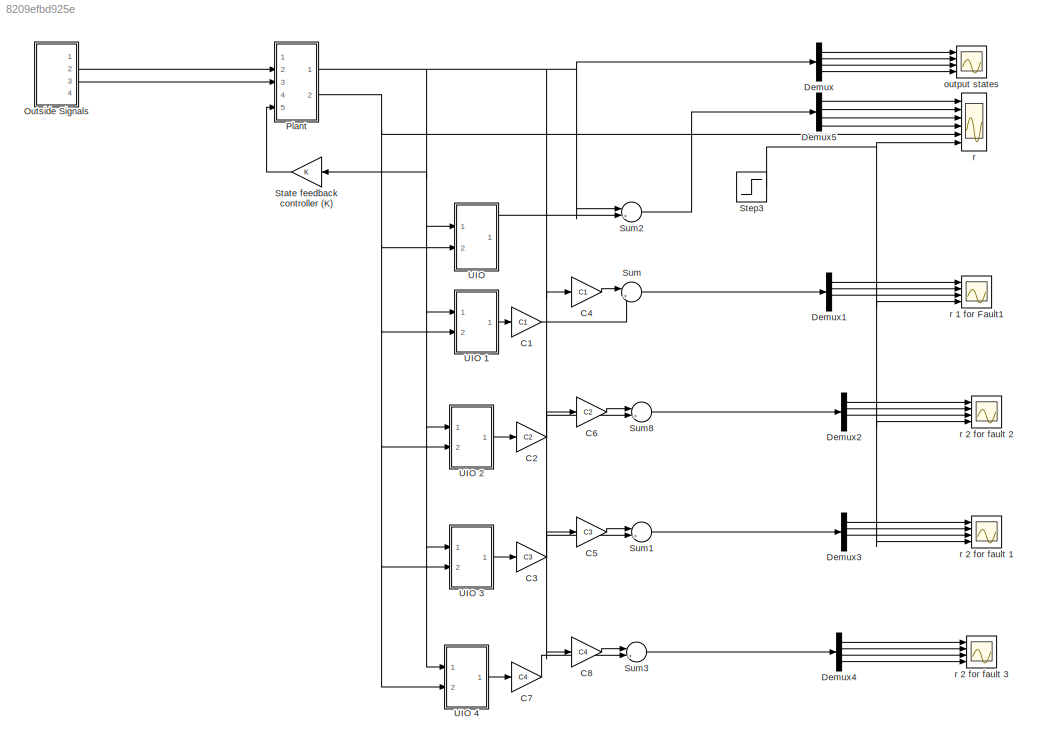
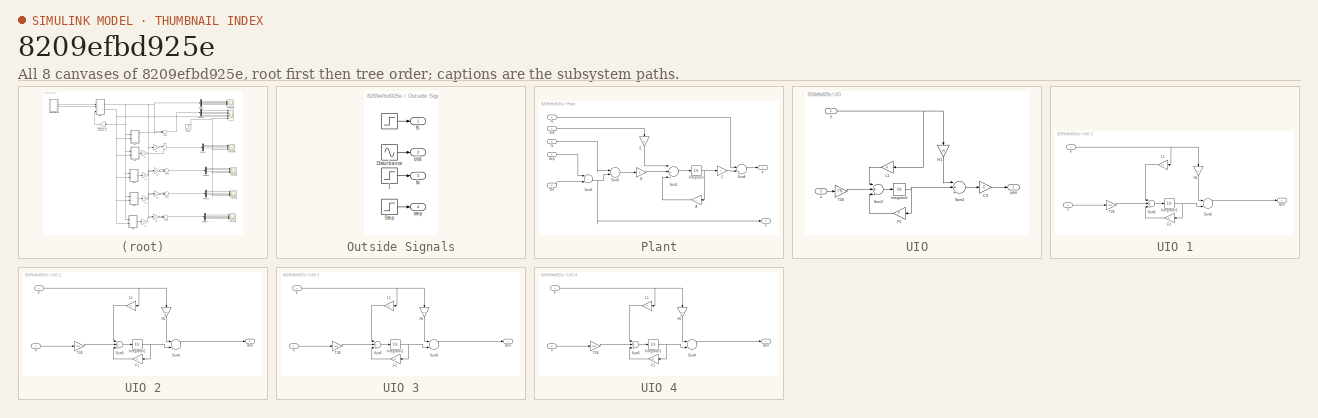
[diagram: thumbnail index - all 8 canvases of the model, root first then tree order]
MODEL slx_8209efbd925e
KIND model
BLOCK [Gain] C1
  Gain = C1
  Multiplication = Matrix(K*u)
  OutDataTypeStr = Inherit: Inherit via internal rule
  ParamDataTypeStr = Inherit: Inherit via internal rule
  SaturateOnIntegerOverflow = off
BLOCK [Gain] C2
  Gain = C2
  Multiplication = Matrix(K*u)
  OutDataTypeStr = Inherit: Inherit via internal rule
  ParamDataTypeStr = Inherit: Inherit via internal rule
  SaturateOnIntegerOverflow = off
BLOCK [Gain] C3
  Gain = C3
  Multiplication = Matrix(K*u)
  OutDataTypeStr = Inherit: Inherit via internal rule
  ParamDataTypeStr = Inherit: Inherit via internal rule
  SaturateOnIntegerOverflow = off
BLOCK [Gain] C4
  Gain = C1
  Multiplication = Matrix(K*u)
  OutDataTypeStr = Inherit: Inherit via internal rule
  ParamDataTypeStr = Inherit: Inherit via internal rule
  SaturateOnIntegerOverflow = off
BLOCK [Gain] C5
  Gain = C3
  Multiplication = Matrix(K*u)
  OutDataTypeStr = Inherit: Inherit via internal rule
  ParamDataTypeStr = Inherit: Inherit via internal rule
  SaturateOnIntegerOverflow = off
BLOCK [Gain] C6
  Gain = C2
  Multiplication = Matrix(K*u)
  OutDataTypeStr = Inherit: Inherit via internal rule
  ParamDataTypeStr = Inherit: Inherit via internal rule
  SaturateOnIntegerOverflow = off
BLOCK [Gain] C7
  Gain = C4
  Multiplication = Matrix(K*u)
  OutDataTypeStr = Inherit: Inherit via internal rule
  ParamDataTypeStr = Inherit: Inherit via internal rule
  SaturateOnIntegerOverflow = off
BLOCK [Gain] C8
  Gain = C4
  Multiplication = Matrix(K*u)
  OutDataTypeStr = Inherit: Inherit via internal rule
  ParamDataTypeStr = Inherit: Inherit via internal rule
  SaturateOnIntegerOverflow = off
BLOCK [Demux] Demux
  DisplayOption = bar
  Ports = [1, 4]
BLOCK [Demux] Demux1
  DisplayOption = bar
  Ports = [1, 4]
BLOCK [Demux] Demux2
  DisplayOption = bar
  Ports = [1, 4]
BLOCK [Demux] Demux3
  DisplayOption = bar
  Ports = [1, 4]
BLOCK [Demux] Demux4
  DisplayOption = bar
  Ports = [1, 4]
BLOCK [Demux] Demux5
  DisplayOption = bar
  Ports = [1, 4]
BLOCK [SubSystem] Outside Signals
  Ports = [0, 4]
  RequestExecContextInheritance = off
BLOCK [Step] Outside Signals/  
  SampleTime = 0
  Time = 7
BLOCK [Step] Outside Signals/  1
  SampleTime = 0
  Time = 7
BLOCK [Sin] Outside Signals/Disturbance
  Frequency = 100
  Ports = [0, 1]
  SampleTime = 0
BLOCK [Step] Outside Signals/Step
  SampleTime = 0
  Time = 0
BLOCK [Outport] Outside Signals/dist
  IconDisplay = Port number
  Port = 2
BLOCK [Outport] Outside Signals/fa
  IconDisplay = Port number
  Port = 3
BLOCK [Outport] Outside Signals/fs
  IconDisplay = Port number
BLOCK [Outport] Outside Signals/step 
  IconDisplay = Port number
  Port = 4
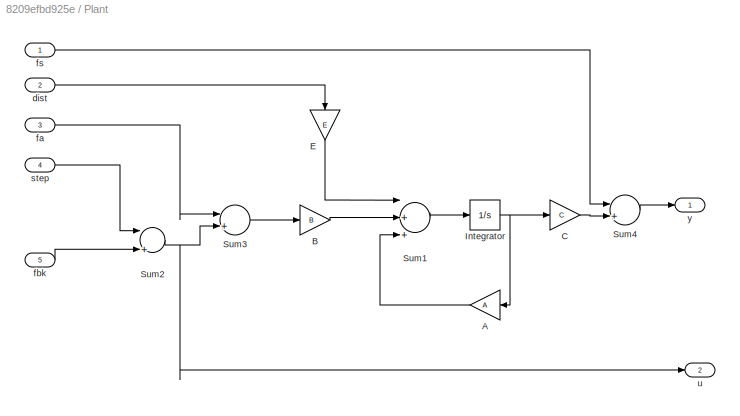
BLOCK [SubSystem] Plant
  Ports = [5, 2]
  RequestExecContextInheritance = off
BLOCK [Gain] Plant/A
  Gain = A
  Multiplication = Matrix(K*u)
  OutDataTypeStr = Inherit: Inherit via internal rule
  ParamDataTypeStr = Inherit: Inherit via internal rule
  SaturateOnIntegerOverflow = off
BLOCK [Gain] Plant/B
  Gain = B
  Multiplication = Matrix(K*u)
  OutDataTypeStr = Inherit: Inherit via internal rule
  ParamDataTypeStr = Inherit: Inherit via internal rule
  SaturateOnIntegerOverflow = off
BLOCK [Gain] Plant/C
  Gain = C
  Multiplication = Matrix(K*u)
  OutDataTypeStr = Inherit: Inherit via internal rule
  ParamDataTypeStr = Inherit: Inherit via internal rule
  SaturateOnIntegerOverflow = off
BLOCK [Gain] Plant/E
  Gain = E
  Multiplication = Matrix(K*u)
  OutDataTypeStr = Inherit: Inherit via internal rule
  ParamDataTypeStr = Inherit: Inherit via internal rule
  SaturateOnIntegerOverflow = off
BLOCK [Integrator] Plant/Integrator
  InitialCondition = [.01;0;.011;.011]
  Ports = [1, 1]
BLOCK [Sum] Plant/Sum1
  InputSameDT = off
  Inputs = |+++
  OutDataTypeStr = Inherit: Inherit via internal rule
  Ports = [3, 1]
  SaturateOnIntegerOverflow = off
BLOCK [Sum] Plant/Sum2
  InputSameDT = off
  Inputs = |+-
  OutDataTypeStr = Inherit: Inherit via internal rule
  Ports = [2, 1]
  SaturateOnIntegerOverflow = off
BLOCK [Sum] Plant/Sum3
  InputSameDT = off
  Inputs = |++
  OutDataTypeStr = Inherit: Inherit via internal rule
  Ports = [2, 1]
  SaturateOnIntegerOverflow = off
BLOCK [Sum] Plant/Sum4
  InputSameDT = off
  Inputs = |++
  OutDataTypeStr = Inherit: Inherit via internal rule
  Ports = [2, 1]
  SaturateOnIntegerOverflow = off
BLOCK [Inport] Plant/dist
  IconDisplay = Port number
  Port = 2
BLOCK [Inport] Plant/fa
  IconDisplay = Port number
  Port = 3
BLOCK [Inport] Plant/fbk
  IconDisplay = Port number
  Port = 5
BLOCK [Inport] Plant/fs
  IconDisplay = Port number
BLOCK [Inport] Plant/step
  IconDisplay = Port number
  Port = 4
BLOCK [Outport] Plant/u
  IconDisplay = Port number
  Port = 2
BLOCK [Outport] Plant/y
  IconDisplay = Port number
BLOCK [Gain] State feedback controller (K)
  Gain = K
  Multiplication = Matrix(K*u)
  OutDataTypeStr = Inherit: Inherit via internal rule
  ParamDataTypeStr = Inherit: Inherit via internal rule
  SaturateOnIntegerOverflow = off
BLOCK [Step] Step3
  SampleTime = 0
  Time = 7
BLOCK [Sum] Sum
  IconShape = round
  InputSameDT = off
  Inputs = |+-
  OutDataTypeStr = Inherit: Inherit via internal rule
  Ports = [2, 1]
  SaturateOnIntegerOverflow = off
BLOCK [Sum] Sum1
  IconShape = round
  InputSameDT = off
  Inputs = |+-
  OutDataTypeStr = Inherit: Inherit via internal rule
  Ports = [2, 1]
  SaturateOnIntegerOverflow = off
BLOCK [Sum] Sum2
  IconShape = round
  InputSameDT = off
  Inputs = |+-
  OutDataTypeStr = Inherit: Inherit via internal rule
  Ports = [2, 1]
  SaturateOnIntegerOverflow = off
BLOCK [Sum] Sum3
  IconShape = round
  InputSameDT = off
  Inputs = |+-
  OutDataTypeStr = Inherit: Inherit via internal rule
  Ports = [2, 1]
  SaturateOnIntegerOverflow = off
BLOCK [Sum] Sum8
  IconShape = round
  InputSameDT = off
  Inputs = |+-
  OutDataTypeStr = Inherit: Inherit via internal rule
  Ports = [2, 1]
  SaturateOnIntegerOverflow = off
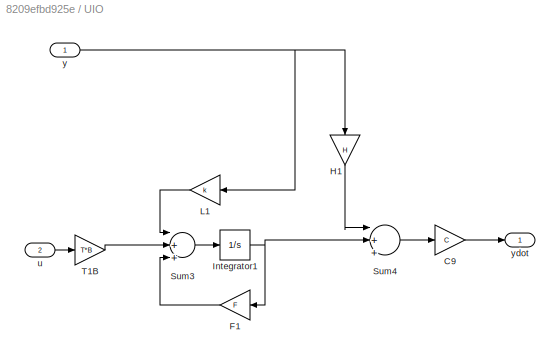
BLOCK [SubSystem] UIO
  Ports = [2, 1]
  RequestExecContextInheritance = off
BLOCK [SubSystem] UIO 1
  Ports = [2, 1]
  RequestExecContextInheritance = off
BLOCK [Gain] UIO 1/F1
  Gain = F1
  Multiplication = Matrix(K*u)
  OutDataTypeStr = Inherit: Inherit via internal rule
  ParamDataTypeStr = Inherit: Inherit via internal rule
  SaturateOnIntegerOverflow = off
BLOCK [Gain] UIO 1/H1
  Gain = H1
  Multiplication = Matrix(K*u)
  OutDataTypeStr = Inherit: Inherit via internal rule
  ParamDataTypeStr = Inherit: Inherit via internal rule
  SaturateOnIntegerOverflow = off
BLOCK [Integrator] UIO 1/Integrator1
  Ports = [1, 1]
BLOCK [Gain] UIO 1/L1
  Gain = K1
  Multiplication = Matrix(K*u)
  OutDataTypeStr = Inherit: Inherit via internal rule
  ParamDataTypeStr = Inherit: Inherit via internal rule
  SaturateOnIntegerOverflow = off
BLOCK [Sum] UIO 1/Sum3
  InputSameDT = off
  Inputs = |+++
  OutDataTypeStr = Inherit: Inherit via internal rule
  Ports = [3, 1]
  SaturateOnIntegerOverflow = off
BLOCK [Sum] UIO 1/Sum4
  InputSameDT = off
  Inputs = |++
  OutDataTypeStr = Inherit: Inherit via internal rule
  Ports = [2, 1]
  SaturateOnIntegerOverflow = off
BLOCK [Gain] UIO 1/T1B
  Gain = T1*B
  Multiplication = Matrix(K*u)
  OutDataTypeStr = Inherit: Inherit via internal rule
  ParamDataTypeStr = Inherit: Inherit via internal rule
  SaturateOnIntegerOverflow = off
BLOCK [Inport] UIO 1/u
  IconDisplay = Port number
  Port = 2
BLOCK [Outport] UIO 1/xdot
  IconDisplay = Port number
BLOCK [Inport] UIO 1/y
  IconDisplay = Port number
BLOCK [SubSystem] UIO 2
  Ports = [2, 1]
  RequestExecContextInheritance = off
BLOCK [Gain] UIO 2/F1
  Gain = F
  Multiplication = Matrix(K*u)
  OutDataTypeStr = Inherit: Inherit via internal rule
  ParamDataTypeStr = Inherit: Inherit via internal rule
  SaturateOnIntegerOverflow = off
BLOCK [Gain] UIO 2/H1
  Gain = H2
  Multiplication = Matrix(K*u)
  OutDataTypeStr = Inherit: Inherit via internal rule
  ParamDataTypeStr = Inherit: Inherit via internal rule
  SaturateOnIntegerOverflow = off
BLOCK [Integrator] UIO 2/Integrator1
  Ports = [1, 1]
BLOCK [Gain] UIO 2/L1
  Gain = K2
  Multiplication = Matrix(K*u)
  OutDataTypeStr = Inherit: Inherit via internal rule
  ParamDataTypeStr = Inherit: Inherit via internal rule
  SaturateOnIntegerOverflow = off
BLOCK [Sum] UIO 2/Sum3
  InputSameDT = off
  Inputs = |+++
  OutDataTypeStr = Inherit: Inherit via internal rule
  Ports = [3, 1]
  SaturateOnIntegerOverflow = off
BLOCK [Sum] UIO 2/Sum4
  InputSameDT = off
  Inputs = |++
  OutDataTypeStr = Inherit: Inherit via internal rule
  Ports = [2, 1]
  SaturateOnIntegerOverflow = off
BLOCK [Gain] UIO 2/T1B
  Gain = T2*B
  Multiplication = Matrix(K*u)
  OutDataTypeStr = Inherit: Inherit via internal rule
  ParamDataTypeStr = Inherit: Inherit via internal rule
  SaturateOnIntegerOverflow = off
BLOCK [Inport] UIO 2/u
  IconDisplay = Port number
  Port = 2
BLOCK [Outport] UIO 2/xdot
  IconDisplay = Port number
BLOCK [Inport] UIO 2/y
  IconDisplay = Port number
BLOCK [SubSystem] UIO 3
  Ports = [2, 1]
  RequestExecContextInheritance = off
BLOCK [Gain] UIO 3/F1
  Gain = F1
  Multiplication = Matrix(K*u)
  OutDataTypeStr = Inherit: Inherit via internal rule
  ParamDataTypeStr = Inherit: Inherit via internal rule
  SaturateOnIntegerOverflow = off
BLOCK [Gain] UIO 3/H1
  Gain = H3
  Multiplication = Matrix(K*u)
  OutDataTypeStr = Inherit: Inherit via internal rule
  ParamDataTypeStr = Inherit: Inherit via internal rule
  SaturateOnIntegerOverflow = off
BLOCK [Integrator] UIO 3/Integrator1
  Ports = [1, 1]
BLOCK [Gain] UIO 3/L1
  Gain = K3
  Multiplication = Matrix(K*u)
  OutDataTypeStr = Inherit: Inherit via internal rule
  ParamDataTypeStr = Inherit: Inherit via internal rule
  SaturateOnIntegerOverflow = off
BLOCK [Sum] UIO 3/Sum3
  InputSameDT = off
  Inputs = |+++
  OutDataTypeStr = Inherit: Inherit via internal rule
  Ports = [3, 1]
  SaturateOnIntegerOverflow = off
BLOCK [Sum] UIO 3/Sum4
  InputSameDT = off
  Inputs = |++
  OutDataTypeStr = Inherit: Inherit via internal rule
  Ports = [2, 1]
  SaturateOnIntegerOverflow = off
BLOCK [Gain] UIO 3/T1B
  Gain = T3*B
  Multiplication = Matrix(K*u)
  OutDataTypeStr = Inherit: Inherit via internal rule
  ParamDataTypeStr = Inherit: Inherit via internal rule
  SaturateOnIntegerOverflow = off
BLOCK [Inport] UIO 3/u
  IconDisplay = Port number
  Port = 2
BLOCK [Outport] UIO 3/xdot
  IconDisplay = Port number
BLOCK [Inport] UIO 3/y
  IconDisplay = Port number
BLOCK [SubSystem] UIO 4
  Ports = [2, 1]
  RequestExecContextInheritance = off
BLOCK [Gain] UIO 4/F1
  Gain = F4
  Multiplication = Matrix(K*u)
  OutDataTypeStr = Inherit: Inherit via internal rule
  ParamDataTypeStr = Inherit: Inherit via internal rule
  SaturateOnIntegerOverflow = off
BLOCK [Gain] UIO 4/H1
  Gain = H4
  Multiplication = Matrix(K*u)
  OutDataTypeStr = Inherit: Inherit via internal rule
  ParamDataTypeStr = Inherit: Inherit via internal rule
  SaturateOnIntegerOverflow = off
BLOCK [Integrator] UIO 4/Integrator1
  Ports = [1, 1]
BLOCK [Gain] UIO 4/L1
  Gain = K4
  Multiplication = Matrix(K*u)
  OutDataTypeStr = Inherit: Inherit via internal rule
  ParamDataTypeStr = Inherit: Inherit via internal rule
  SaturateOnIntegerOverflow = off
BLOCK [Sum] UIO 4/Sum3
  InputSameDT = off
  Inputs = |+++
  OutDataTypeStr = Inherit: Inherit via internal rule
  Ports = [3, 1]
  SaturateOnIntegerOverflow = off
BLOCK [Sum] UIO 4/Sum4
  InputSameDT = off
  Inputs = |++
  OutDataTypeStr = Inherit: Inherit via internal rule
  Ports = [2, 1]
  SaturateOnIntegerOverflow = off
BLOCK [Gain] UIO 4/T1B
  Gain = T4*B
  Multiplication = Matrix(K*u)
  OutDataTypeStr = Inherit: Inherit via internal rule
  ParamDataTypeStr = Inherit: Inherit via internal rule
  SaturateOnIntegerOverflow = off
BLOCK [Inport] UIO 4/u
  IconDisplay = Port number
  Port = 2
BLOCK [Outport] UIO 4/xdot
  IconDisplay = Port number
BLOCK [Inport] UIO 4/y
  IconDisplay = Port number
BLOCK [Gain] UIO/C9
  Gain = C
  Multiplication = Matrix(K*u)
  OutDataTypeStr = Inherit: Inherit via internal rule
  ParamDataTypeStr = Inherit: Inherit via internal rule
  SaturateOnIntegerOverflow = off
BLOCK [Gain] UIO/F1
  Gain = F
  Multiplication = Matrix(K*u)
  OutDataTypeStr = Inherit: Inherit via internal rule
  ParamDataTypeStr = Inherit: Inherit via internal rule
  SaturateOnIntegerOverflow = off
BLOCK [Gain] UIO/H1
  Gain = H
  Multiplication = Matrix(K*u)
  OutDataTypeStr = Inherit: Inherit via internal rule
  ParamDataTypeStr = Inherit: Inherit via internal rule
  SaturateOnIntegerOverflow = off
BLOCK [Integrator] UIO/Integrator1
  Ports = [1, 1]
BLOCK [Gain] UIO/L1
  Gain = k
  Multiplication = Matrix(K*u)
  OutDataTypeStr = Inherit: Inherit via internal rule
  ParamDataTypeStr = Inherit: Inherit via internal rule
  SaturateOnIntegerOverflow = off
BLOCK [Sum] UIO/Sum3
  InputSameDT = off
  Inputs = |+++
  OutDataTypeStr = Inherit: Inherit via internal rule
  Ports = [3, 1]
  SaturateOnIntegerOverflow = off
BLOCK [Sum] UIO/Sum4
  InputSameDT = off
  Inputs = |+++
  OutDataTypeStr = Inherit: Inherit via internal rule
  Ports = [3, 1]
  SaturateOnIntegerOverflow = off
BLOCK [Gain] UIO/T1B
  Gain = T*B
  Multiplication = Matrix(K*u)
  OutDataTypeStr = Inherit: Inherit via internal rule
  ParamDataTypeStr = Inherit: Inherit via internal rule
  SaturateOnIntegerOverflow = off
BLOCK [Inport] UIO/u
  IconDisplay = Port number
  Port = 2
BLOCK [Inport] UIO/y
  IconDisplay = Port number
BLOCK [Outport] UIO/ydot
  IconDisplay = Port number
BLOCK [Scope] output states
  DataFormat = StructureWithTime
  Floating = off
  NumInputPorts = 4
  Ports = [4]
  SampleTime = 0
  ShowLegends = off
  TimeRange = 10
  YMax = 5~5~5~5
  YMin = -5~-5~-5~-5
BLOCK [Scope] r
  DataFormat = StructureWithTime
  Floating = off
  NumInputPorts = 6
  Ports = [6]
  SampleTime = 0
  SaveName = ScopeData5
  ShowLegends = off
  YMax = 5~5~5~5~5~5
  YMin = -5~-5~-5~-5~-5~-5
BLOCK [Scope] r 1 for Fault1
  DataFormat = StructureWithTime
  Floating = off
  NumInputPorts = 4
  Ports = [4]
  SampleTime = 0
  SaveName = ScopeData1
  ShowLegends = off
  YMax = 1e-020~5~5~5
  YMin = -1e-020~-5~-5~-5
BLOCK [Scope] r 2 for fault 1
  DataFormat = StructureWithTime
  Floating = off
  NumInputPorts = 4
  Ports = [4]
  SampleTime = 0
  SaveName = ScopeData3
  ShowLegends = off
  YMax = 5~5~5~5
  YMin = -5~-5~-5~-5
BLOCK [Scope] r 2 for fault 2
  DataFormat = StructureWithTime
  Floating = off
  NumInputPorts = 4
  Ports = [4]
  SampleTime = 0
  SaveName = ScopeData2
  ShowLegends = off
  YMax = 5~5~5~5
  YMin = -5~-5~-5~-5
BLOCK [Scope] r 2 for fault 3
  DataFormat = StructureWithTime
  Floating = off
  NumInputPorts = 4
  Ports = [4]
  SampleTime = 0
  SaveName = ScopeData4
  ShowLegends = off
  YMax = 5~5~5~5
  YMin = -5~-5~-5~-5
LINE C1:1 -> Sum:2
LINE C2:1 -> Sum8:2
LINE C3:1 -> Sum1:2
LINE C4:1 -> Sum:1
LINE C5:1 -> Sum1:1
LINE C6:1 -> Sum8:1
LINE C7:1 -> Sum3:2
LINE C8:1 -> Sum3:1
LINE Demux1:1 -> r 1 for Fault1:1
LINE Demux1:2 -> r 1 for Fault1:2
LINE Demux1:3 -> r 1 for Fault1:3
LINE Demux2:1 -> r 2 for fault 2:1
LINE Demux2:2 -> r 2 for fault 2:2
LINE Demux2:3 -> r 2 for fault 2:3
LINE Demux3:1 -> r 2 for fault 1:1
LINE Demux3:2 -> r 2 for fault 1:2
LINE Demux3:3 -> r 2 for fault 1:3
LINE Demux4:1 -> r 2 for fault 3:1
LINE Demux4:2 -> r 2 for fault 3:2
LINE Demux4:3 -> r 2 for fault 3:3
LINE Demux4:4 -> r 2 for fault 3:4
LINE Demux5:1 -> r:1
LINE Demux5:2 -> r:2
LINE Demux5:3 -> r:3
LINE Demux5:4 -> r:4
LINE Demux:1 -> output states:1
LINE Demux:2 -> output states:2
LINE Demux:3 -> output states:3
LINE Demux:4 -> output states:4
LINE Outside Signals/  1:1 -> Outside Signals/fa:1
LINE Outside Signals/  :1 -> Outside Signals/fs:1
LINE Outside Signals/Disturbance:1 -> Outside Signals/dist:1
LINE Outside Signals/Step:1 -> Outside Signals/step :1
LINE Outside Signals:2 -> Plant:2
LINE Outside Signals:3 -> Plant:3
LINE Plant/A:1 -> Plant/Sum1:3
LINE Plant/B:1 -> Plant/Sum1:2
LINE Plant/C:1 -> Plant/Sum4:2
LINE Plant/E:1 -> Plant/Sum1:1
NET Plant/Integrator:1 -> Plant/A:1, Plant/C:1
LINE Plant/Sum1:1 -> Plant/Integrator:1
NET Plant/Sum2:1 -> Plant/Sum3:2, Plant/u:1
LINE Plant/Sum3:1 -> Plant/B:1
LINE Plant/Sum4:1 -> Plant/y:1
LINE Plant/dist:1 -> Plant/E:1
LINE Plant/fa:1 -> Plant/Sum3:1
LINE Plant/fbk:1 -> Plant/Sum2:2
LINE Plant/fs:1 -> Plant/Sum4:1
LINE Plant/step:1 -> Plant/Sum2:1
NET Plant:1 -> C4:1, C5:1, C6:1, C8:1, Demux:1, State feedback controller (K):1, Sum2:1, UIO 1:1, UIO 2:1, UIO 3:1, UIO 4:1, UIO:1
NET Plant:2 -> UIO 1:2, UIO 2:2, UIO 3:2, UIO 4:2, UIO:2, r:5
LINE State feedback controller (K):1 -> Plant:5
NET Step3:1 -> r 1 for Fault1:4, r 2 for fault 1:4, r 2 for fault 2:4, r:6
LINE Sum1:1 -> Demux3:1
LINE Sum2:1 -> Demux5:1
LINE Sum3:1 -> Demux4:1
LINE Sum8:1 -> Demux2:1
LINE Sum:1 -> Demux1:1
LINE UIO 1/F1:1 -> UIO 1/Sum3:3
LINE UIO 1/H1:1 -> UIO 1/Sum4:1
NET UIO 1/Integrator1:1 -> UIO 1/F1:1, UIO 1/Sum4:2
LINE UIO 1/L1:1 -> UIO 1/Sum3:1
LINE UIO 1/Sum3:1 -> UIO 1/Integrator1:1
LINE UIO 1/Sum4:1 -> UIO 1/xdot:1
LINE UIO 1/T1B:1 -> UIO 1/Sum3:2
LINE UIO 1/u:1 -> UIO 1/T1B:1
NET UIO 1/y:1 -> UIO 1/H1:1, UIO 1/L1:1
LINE UIO 1:1 -> C1:1
LINE UIO 2/F1:1 -> UIO 2/Sum3:3
LINE UIO 2/H1:1 -> UIO 2/Sum4:1
NET UIO 2/Integrator1:1 -> UIO 2/F1:1, UIO 2/Sum4:2
LINE UIO 2/L1:1 -> UIO 2/Sum3:1
LINE UIO 2/Sum3:1 -> UIO 2/Integrator1:1
LINE UIO 2/Sum4:1 -> UIO 2/xdot:1
LINE UIO 2/T1B:1 -> UIO 2/Sum3:2
LINE UIO 2/u:1 -> UIO 2/T1B:1
NET UIO 2/y:1 -> UIO 2/H1:1, UIO 2/L1:1
LINE UIO 2:1 -> C2:1
LINE UIO 3/F1:1 -> UIO 3/Sum3:3
LINE UIO 3/H1:1 -> UIO 3/Sum4:1
NET UIO 3/Integrator1:1 -> UIO 3/F1:1, UIO 3/Sum4:2
LINE UIO 3/L1:1 -> UIO 3/Sum3:1
LINE UIO 3/Sum3:1 -> UIO 3/Integrator1:1
LINE UIO 3/Sum4:1 -> UIO 3/xdot:1
LINE UIO 3/T1B:1 -> UIO 3/Sum3:2
LINE UIO 3/u:1 -> UIO 3/T1B:1
NET UIO 3/y:1 -> UIO 3/H1:1, UIO 3/L1:1
LINE UIO 3:1 -> C3:1
LINE UIO 4/F1:1 -> UIO 4/Sum3:3
LINE UIO 4/H1:1 -> UIO 4/Sum4:1
NET UIO 4/Integrator1:1 -> UIO 4/F1:1, UIO 4/Sum4:2
LINE UIO 4/L1:1 -> UIO 4/Sum3:1
LINE UIO 4/Sum3:1 -> UIO 4/Integrator1:1
LINE UIO 4/Sum4:1 -> UIO 4/xdot:1
LINE UIO 4/T1B:1 -> UIO 4/Sum3:2
LINE UIO 4/u:1 -> UIO 4/T1B:1
NET UIO 4/y:1 -> UIO 4/H1:1, UIO 4/L1:1
LINE UIO 4:1 -> C7:1
LINE UIO/C9:1 -> UIO/ydot:1
LINE UIO/F1:1 -> UIO/Sum3:3
LINE UIO/H1:1 -> UIO/Sum4:1
NET UIO/Integrator1:1 -> UIO/F1:1, UIO/Sum4:2
LINE UIO/L1:1 -> UIO/Sum3:1
LINE UIO/Sum3:1 -> UIO/Integrator1:1
LINE UIO/Sum4:1 -> UIO/C9:1
LINE UIO/T1B:1 -> UIO/Sum3:2
LINE UIO/u:1 -> UIO/T1B:1
NET UIO/y:1 -> UIO/H1:1, UIO/L1:1
LINE UIO:1 -> Sum2:2
note: NET lines group one-source signal fan-out (src -> all destinations, sorted); 1:1 wires keep LINE
